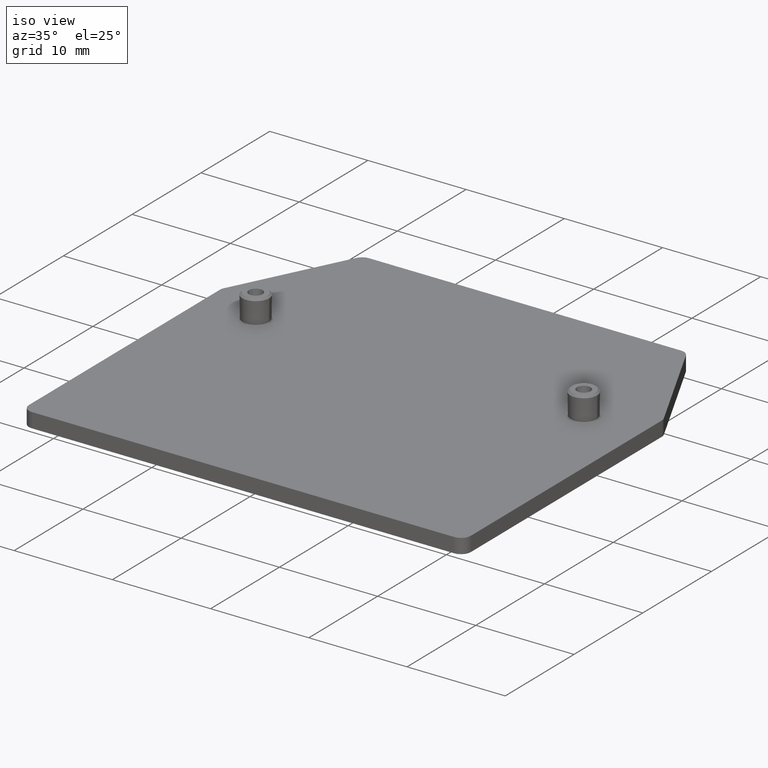
[diagram: clean part render]
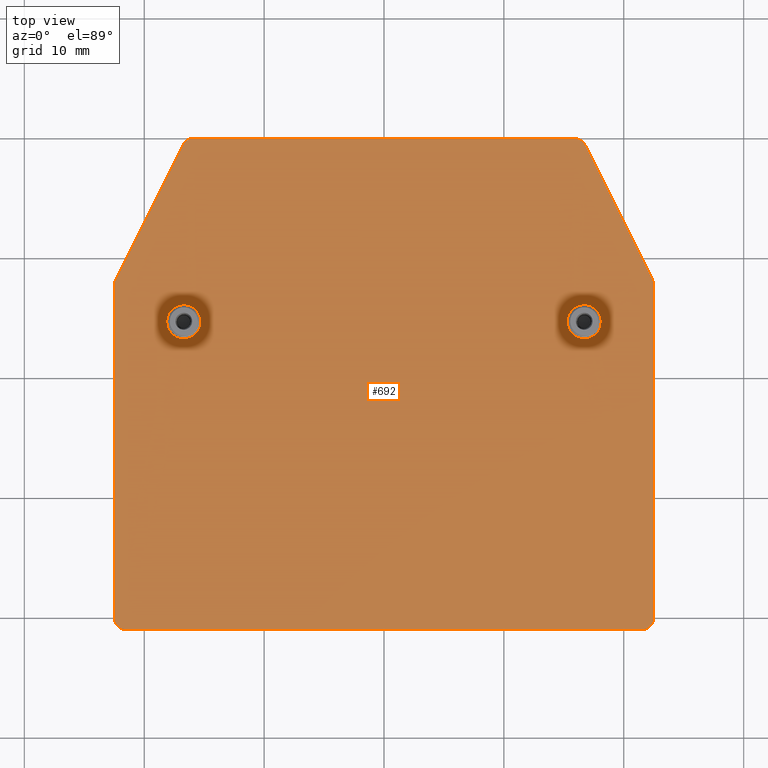
[diagram: tour spotlight — one face highlighted and labeled with its STEP entity id]
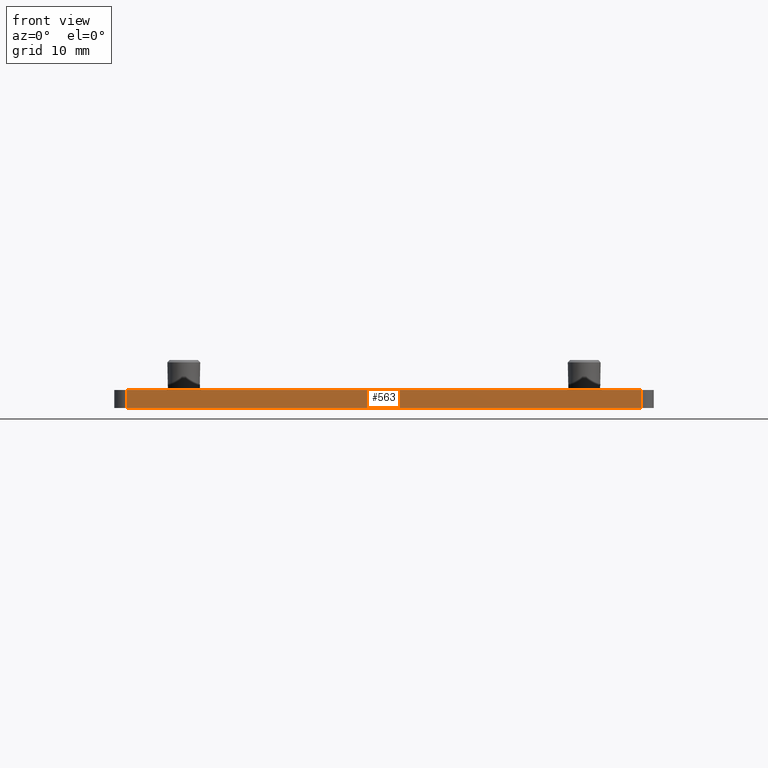
[diagram: tour spotlight — one face highlighted and labeled with its STEP entity id]
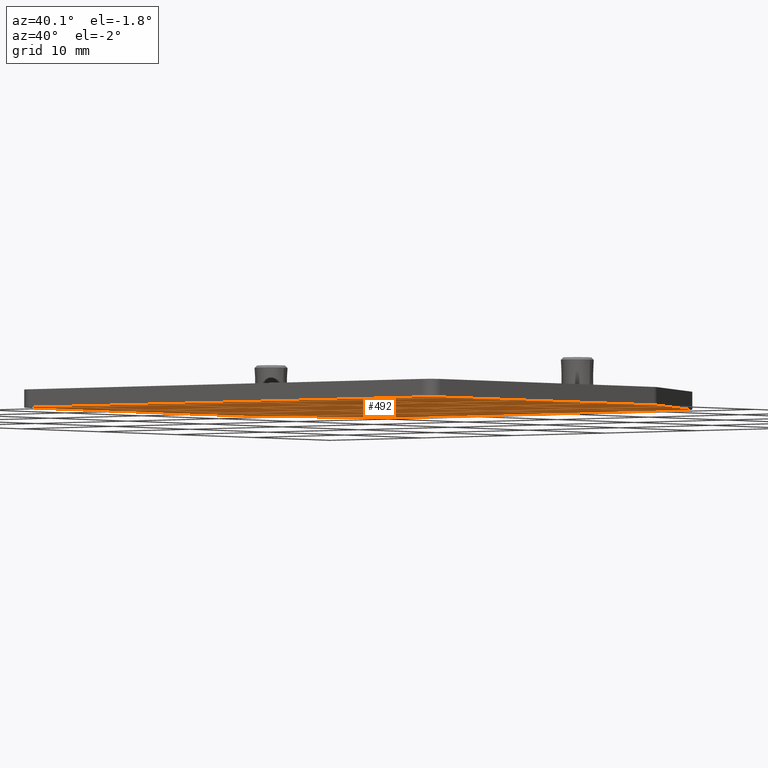
[diagram: tour spotlight — one face highlighted and labeled with its STEP entity id]
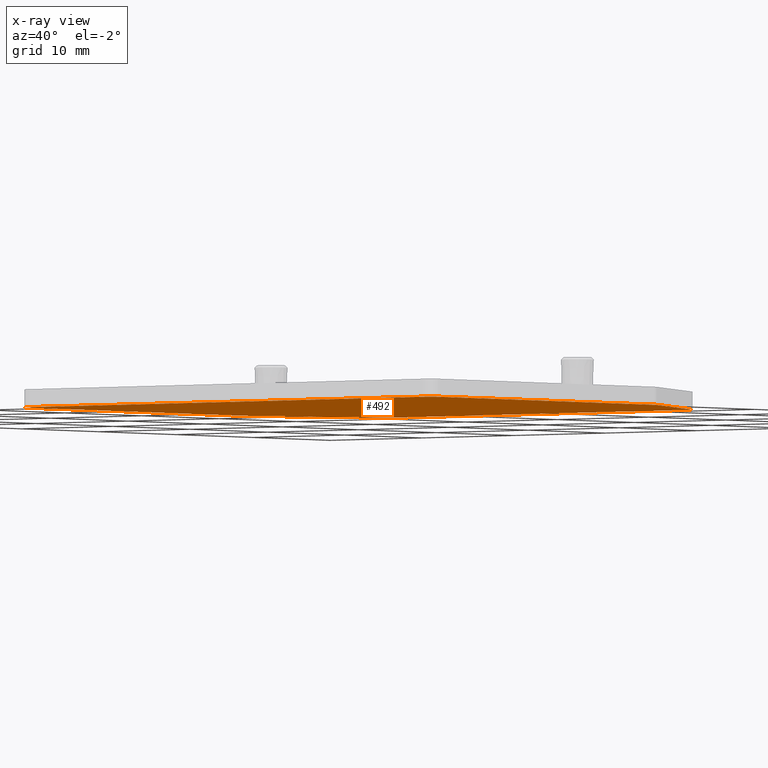
[diagram: x-ray of the same camera — body ghosted, this tour face saturated]
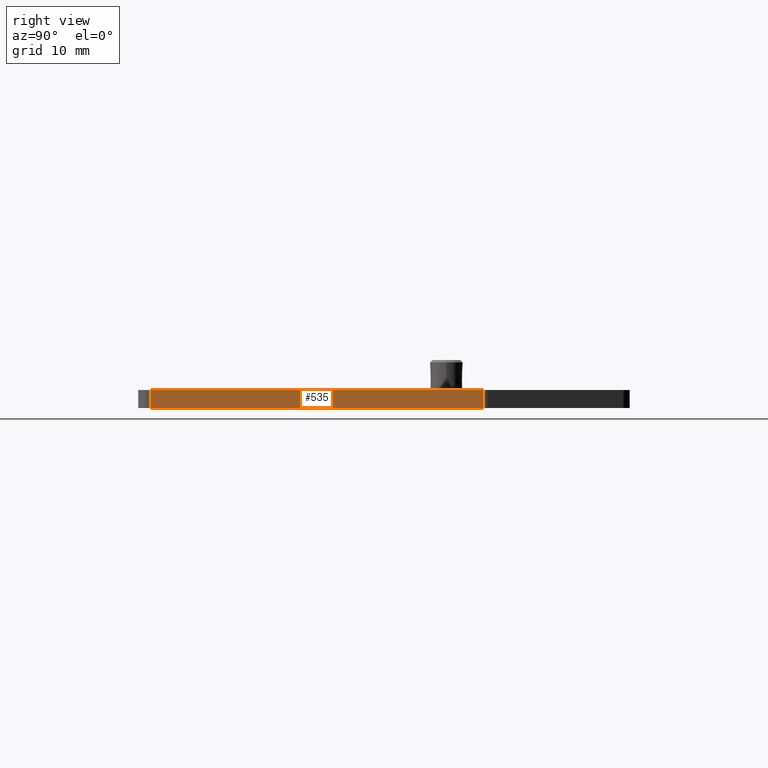
[diagram: tour spotlight — one face highlighted and labeled with its STEP entity id]
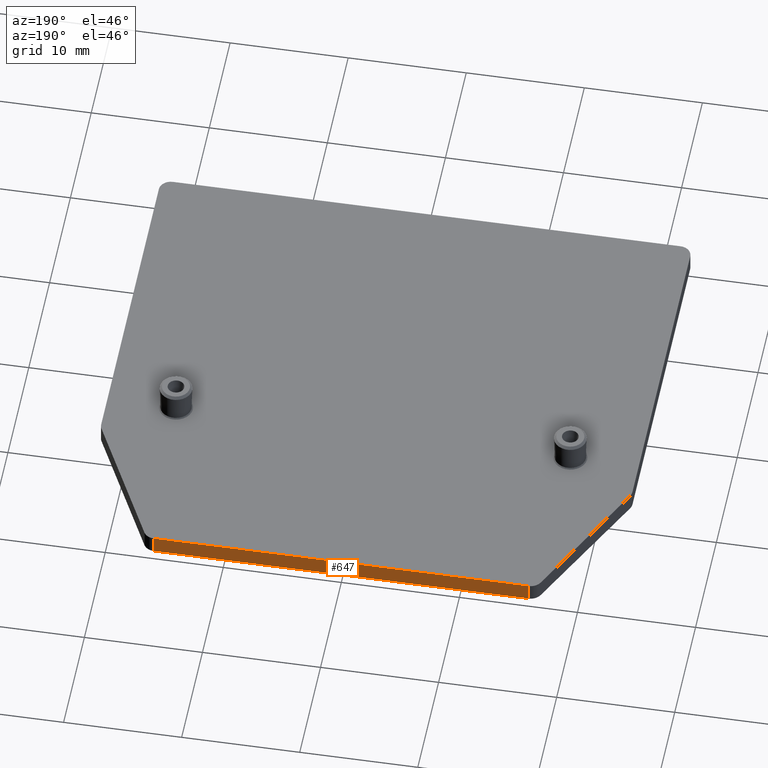
[diagram: tour spotlight — one face highlighted and labeled with its STEP entity id]
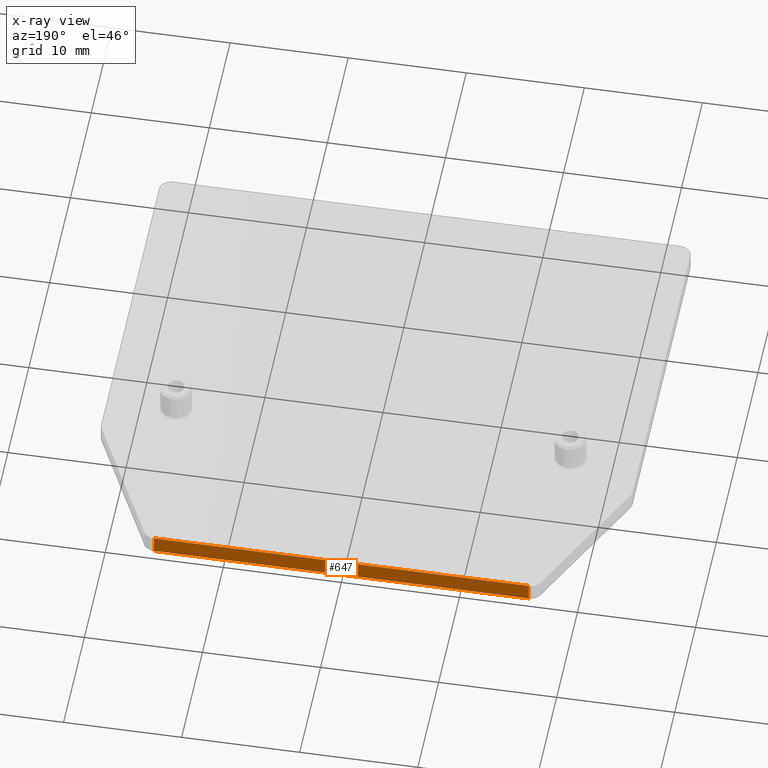
[diagram: x-ray of the same camera — body ghosted, this tour face saturated]
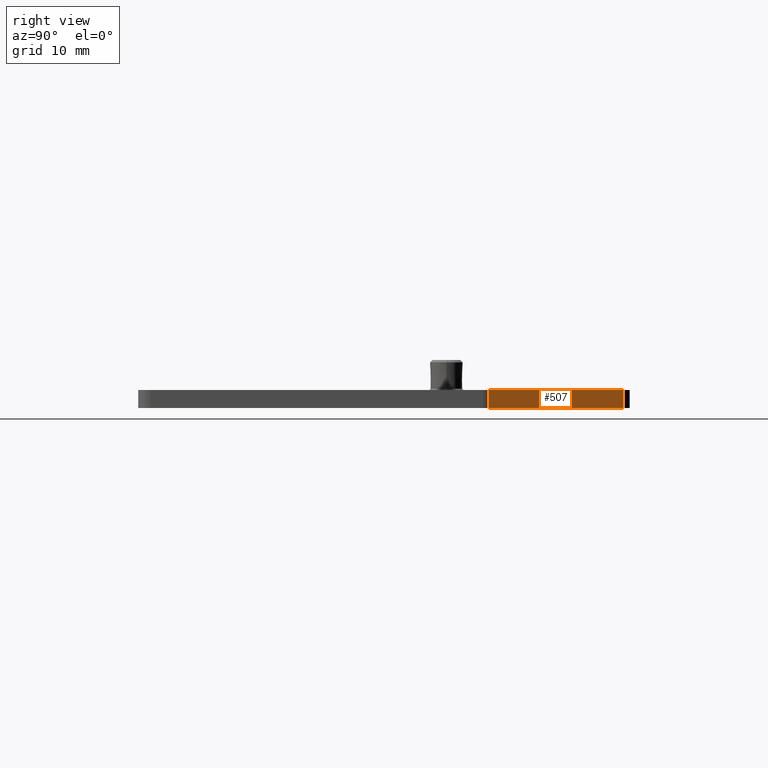
[diagram: tour spotlight — one face highlighted and labeled with its STEP entity id]
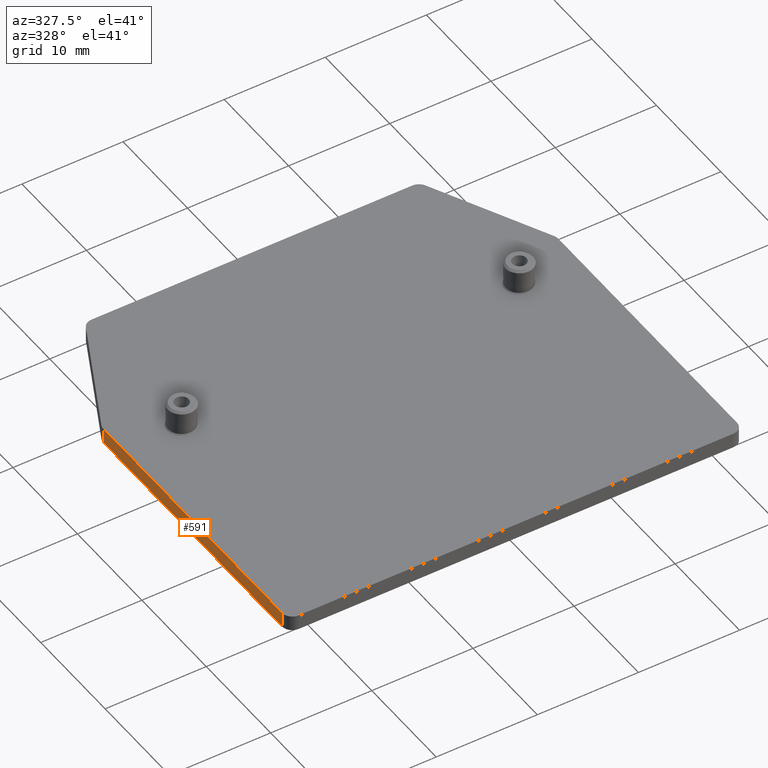
[diagram: tour spotlight — one face highlighted and labeled with its STEP entity id]
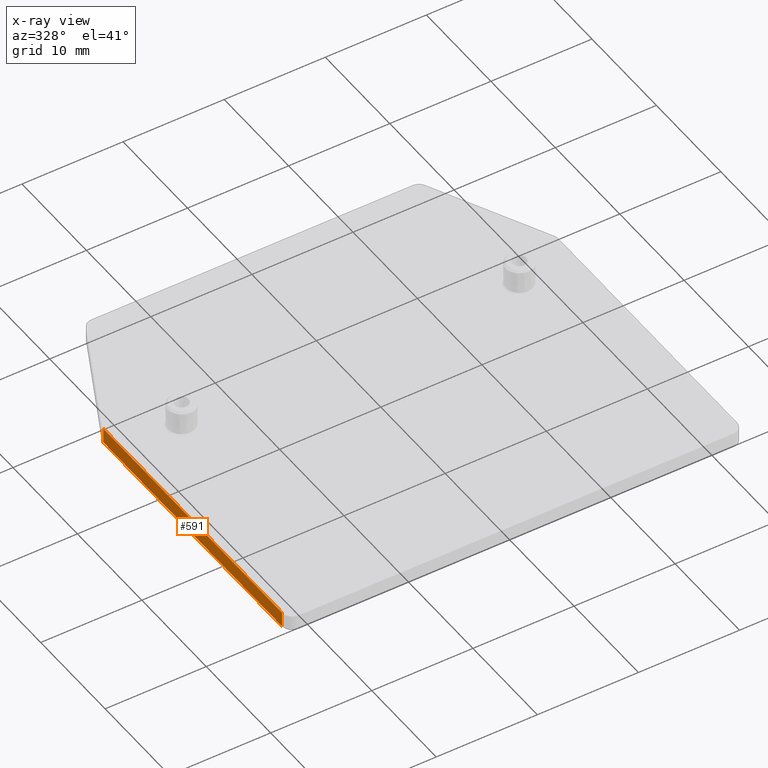
[diagram: x-ray of the same camera — body ghosted, this tour face saturated]
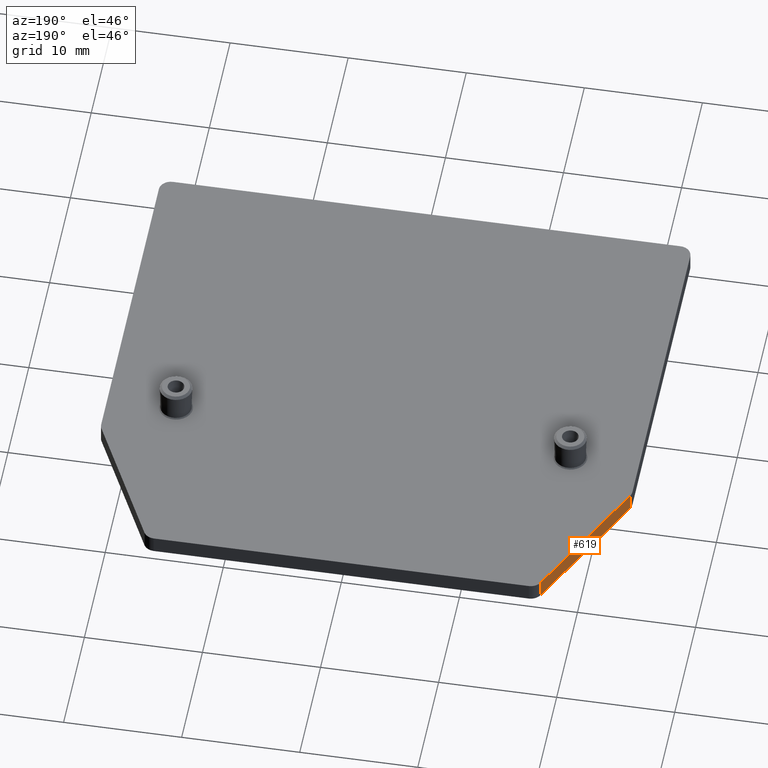
[diagram: tour spotlight — one face highlighted and labeled with its STEP entity id]
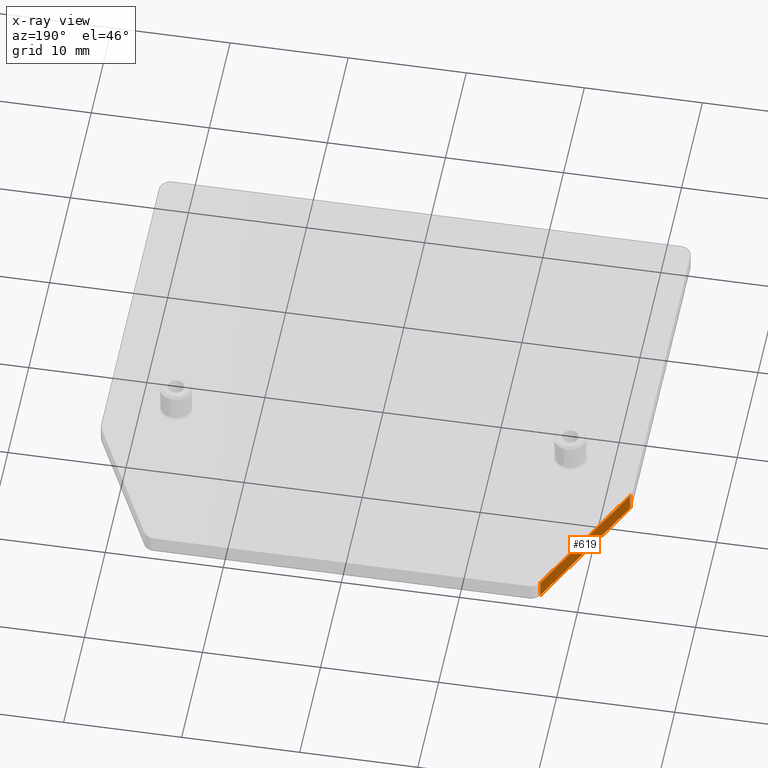
[diagram: x-ray of the same camera — body ghosted, this tour face saturated]
A machine part: a face-by-face anatomy tour. The part has 36 B-rep faces; the first image is the clean iso view, then the 8 largest visible faces are spotlighted one at a time (largest first), each with its STEP entity span.

Face 1 — top view, entity #692. In plain terms, the highlighted planar face has unit normal (0, 0, 1).
Definition (entity closure, byte-faithful):
#29=CARTESIAN_POINT('',(2.15E1,-1.223606797750E1,7.5E-1));
#30=DIRECTION('',(0.E0,0.E0,1.E0));
#31=DIRECTION('',(1.E0,0.E0,0.E0));
#32=AXIS2_PLACEMENT_3D('',#29,#30,#31);
#56=CARTESIAN_POINT('',(2.15E1,-4.E1,7.5E-1));
#57=DIRECTION('',(0.E0,0.E0,-1.E0));
#58=DIRECTION('',(1.E0,0.E0,0.E0));
#59=AXIS2_PLACEMENT_3D('',#56,#57,#58);
#74=CARTESIAN_POINT('',(-2.15E1,-4.E1,7.5E-1));
#75=DIRECTION('',(0.E0,0.E0,-1.E0));
#76=DIRECTION('',(0.E0,-1.E0,0.E0));
#77=AXIS2_PLACEMENT_3D('',#74,#75,#76);
#92=CARTESIAN_POINT('',(-2.15E1,-1.223606797750E1,7.5E-1));
#93=DIRECTION('',(0.E0,0.E0,-1.E0));
#94=DIRECTION('',(-1.E0,0.E0,0.E0));
#95=AXIS2_PLACEMENT_3D('',#92,#93,#94);
#101=CARTESIAN_POINT('',(-1.588196601125E1,-1.E0,7.5E-1));
#102=DIRECTION('',(0.E0,0.E0,1.E0));
#103=DIRECTION('',(0.E0,1.E0,0.E0));
#104=AXIS2_PLACEMENT_3D('',#101,#102,#103);
#128=CARTESIAN_POINT('',(1.588196601125E1,-1.E0,7.5E-1));
#129=DIRECTION('',(0.E0,0.E0,-1.E0));
#130=DIRECTION('',(0.E0,1.E0,0.E0));
#131=AXIS2_PLACEMENT_3D('',#128,#129,#130);
#133=DIRECTION('',(-4.472135955E-1,8.944271909999E-1,0.E0));
#134=VECTOR('',#133,1.256230589875E1);
#135=CARTESIAN_POINT('',(2.239442719100E1,-1.178885438200E1,7.5E-1));
#136=LINE('',#135,#134);
#137=DIRECTION('',(0.E0,1.E0,0.E0));
#138=VECTOR('',#137,2.776393202250E1);
#139=CARTESIAN_POINT('',(2.25E1,-4.E1,7.5E-1));
#140=LINE('',#139,#138);
#141=DIRECTION('',(1.E0,0.E0,0.E0));
#142=VECTOR('',#141,4.3E1);
#143=CARTESIAN_POINT('',(-2.15E1,-4.1E1,7.5E-1));
#144=LINE('',#143,#142);
#145=DIRECTION('',(0.E0,-1.E0,0.E0));
#146=VECTOR('',#145,2.776393202250E1);
#147=CARTESIAN_POINT('',(-2.25E1,-1.223606797750E1,7.5E-1));
#148=LINE('',#147,#146);
#149=DIRECTION('',(-4.472135955E-1,-8.944271909999E-1,0.E0));
#150=VECTOR('',#149,1.256230589875E1);
#151=CARTESIAN_POINT('',(-1.677639320225E1,-5.527864045E-1,7.5E-1));
#152=LINE('',#151,#150);
#153=DIRECTION('',(-1.E0,0.E0,0.E0));
#154=VECTOR('',#153,3.176393202250E1);
#155=CARTESIAN_POINT('',(1.588196601125E1,0.E0,7.5E-1));
#156=LINE('',#155,#154);
#157=CARTESIAN_POINT('',(1.67E1,-1.53E1,7.5E-1));
#158=DIRECTION('',(0.E0,0.E0,-1.E0));
#159=DIRECTION('',(1.E0,3.490385368646E-14,0.E0));
#160=AXIS2_PLACEMENT_3D('',#157,#158,#159);
#175=CARTESIAN_POINT('',(1.67E1,-1.53E1,7.5E-1));
#176=DIRECTION('',(0.E0,0.E0,-1.E0));
#177=DIRECTION('',(-1.E0,3.490385368646E-14,0.E0));
#178=AXIS2_PLACEMENT_3D('',#175,#176,#177);
#259=CARTESIAN_POINT('',(-1.67E1,-1.53E1,7.5E-1));
#260=DIRECTION('',(0.E0,0.E0,1.E0));
#261=DIRECTION('',(-1.E0,3.490385368646E-14,0.E0));
#262=AXIS2_PLACEMENT_3D('',#259,#260,#261);
#277=CARTESIAN_POINT('',(-1.67E1,-1.53E1,7.5E-1));
#278=DIRECTION('',(0.E0,0.E0,1.E0));
#279=DIRECTION('',(1.E0,2.617789026485E-14,0.E0));
#280=AXIS2_PLACEMENT_3D('',#277,#278,#279);
#372=CARTESIAN_POINT('',(2.25E1,-4.E1,7.5E-1));
#374=VERTEX_POINT('',#372);
#376=CARTESIAN_POINT('',(2.15E1,-4.1E1,7.5E-1));
#378=VERTEX_POINT('',#376);
#380=CARTESIAN_POINT('',(-2.15E1,-4.1E1,7.5E-1));
#382=VERTEX_POINT('',#380);
#384=CARTESIAN_POINT('',(-2.25E1,-4.E1,7.5E-1));
#386=VERTEX_POINT('',#384);
#413=CARTESIAN_POINT('',(1.5275E1,-1.53E1,7.5E-1));
#414=CARTESIAN_POINT('',(1.8125E1,-1.53E1,7.5E-1));
#415=VERTEX_POINT('',#413);
#416=VERTEX_POINT('',#414);
#421=CARTESIAN_POINT('',(-1.5275E1,-1.53E1,7.5E-1));
#422=CARTESIAN_POINT('',(-1.8125E1,-1.53E1,7.5E-1));
#423=VERTEX_POINT('',#421);
#424=VERTEX_POINT('',#422);
#430=CARTESIAN_POINT('',(2.25E1,-1.223606797750E1,7.5E-1));
#432=VERTEX_POINT('',#430);
#434=CARTESIAN_POINT('',(2.239442719100E1,-1.178885438200E1,7.5E-1));
#436=VERTEX_POINT('',#434);
#438=CARTESIAN_POINT('',(1.588196601125E1,0.E0,7.5E-1));
#440=VERTEX_POINT('',#438);
#442=CARTESIAN_POINT('',(1.677639320225E1,-5.527864045E-1,7.5E-1));
#444=VERTEX_POINT('',#442);
#446=CARTESIAN_POINT('',(-1.588196601125E1,0.E0,7.5E-1));
#448=VERTEX_POINT('',#446);
#450=CARTESIAN_POINT('',(-1.677639320225E1,-5.527864045E-1,7.5E-1));
#452=VERTEX_POINT('',#450);
#454=CARTESIAN_POINT('',(-2.25E1,-1.223606797750E1,7.5E-1));
#456=VERTEX_POINT('',#454);
#458=CARTESIAN_POINT('',(-2.239442719100E1,-1.178885438200E1,7.5E-1));
#460=VERTEX_POINT('',#458);
#661=CARTESIAN_POINT('',(0.E0,0.E0,7.5E-1));
#662=DIRECTION('',(0.E0,0.E0,1.E0));
#663=DIRECTION('',(1.E0,0.E0,0.E0));
#664=AXIS2_PLACEMENT_3D('',#661,#662,#663);
#665=PLANE('',#664);
#666=ORIENTED_EDGE('',*,*,#501,.F.);
#667=ORIENTED_EDGE('',*,*,#515,.F.);
#668=ORIENTED_EDGE('',*,*,#531,.F.);
#669=ORIENTED_EDGE('',*,*,#545,.T.);
#670=ORIENTED_EDGE('',*,*,#558,.F.);
#671=ORIENTED_EDGE('',*,*,#573,.T.);
#672=ORIENTED_EDGE('',*,*,#585,.F.);
#673=ORIENTED_EDGE('',*,*,#601,.T.);
#674=ORIENTED_EDGE('',*,*,#614,.F.);
#675=ORIENTED_EDGE('',*,*,#627,.F.);
#676=ORIENTED_EDGE('',*,*,#641,.F.);
#677=ORIENTED_EDGE('',*,*,#656,.T.);
#678=EDGE_LOOP('',(#666,#667,#668,#669,#670,#671,#672,#673,#674,#675,#676,
#677));
#679=FACE_OUTER_BOUND('',#678,.F.);
#681=ORIENTED_EDGE('',*,*,#680,.F.);
#683=ORIENTED_EDGE('',*,*,#682,.F.);
#684=EDGE_LOOP('',(#681,#683));
#685=FACE_BOUND('',#684,.F.);
#687=ORIENTED_EDGE('',*,*,#686,.T.);
#689=ORIENTED_EDGE('',*,*,#688,.T.);
#690=EDGE_LOOP('',(#687,#689));
#691=FACE_BOUND('',#690,.F.);
#692=ADVANCED_FACE('',(#679,#685,#691),#665,.T.);
#33=CIRCLE('',#32,1.E0);
#60=CIRCLE('',#59,1.E0);
#78=CIRCLE('',#77,1.E0);
#96=CIRCLE('',#95,1.E0);
#105=CIRCLE('',#104,1.E0);
#132=CIRCLE('',#131,1.E0);
#161=CIRCLE('',#160,1.425E0);
#179=CIRCLE('',#178,1.425E0);
#263=CIRCLE('',#262,1.425E0);
#281=CIRCLE('',#280,1.425E0);
#501=EDGE_CURVE('',#436,#444,#136,.T.);
#515=EDGE_CURVE('',#432,#436,#33,.T.);
#531=EDGE_CURVE('',#374,#432,#140,.T.);
#545=EDGE_CURVE('',#374,#378,#60,.T.);
#558=EDGE_CURVE('',#382,#378,#144,.T.);
#573=EDGE_CURVE('',#382,#386,#78,.T.);
#585=EDGE_CURVE('',#456,#386,#148,.T.);
#601=EDGE_CURVE('',#456,#460,#96,.T.);
#614=EDGE_CURVE('',#452,#460,#152,.T.);
#627=EDGE_CURVE('',#448,#452,#105,.T.);
#641=EDGE_CURVE('',#440,#448,#156,.T.);
#656=EDGE_CURVE('',#440,#444,#132,.T.);
#680=EDGE_CURVE('',#416,#415,#161,.T.);
#682=EDGE_CURVE('',#415,#416,#179,.T.);
#686=EDGE_CURVE('',#424,#423,#263,.T.);
#688=EDGE_CURVE('',#423,#424,#281,.T.);

Face 2 — front view, entity #563. In plain terms, the highlighted planar face has unit normal (0, -1, 0).
Definition (entity closure, byte-faithful):
#17=DIRECTION('',(1.E0,0.E0,0.E0));
#18=VECTOR('',#17,4.3E1);
#19=CARTESIAN_POINT('',(-2.15E1,-4.1E1,-7.5E-1));
#20=LINE('',#19,#18);
#52=DIRECTION('',(0.E0,0.E0,1.E0));
#53=VECTOR('',#52,1.5E0);
#54=CARTESIAN_POINT('',(2.15E1,-4.1E1,-7.5E-1));
#55=LINE('',#54,#53);
#61=DIRECTION('',(0.E0,0.E0,1.E0));
#62=VECTOR('',#61,1.5E0);
#63=CARTESIAN_POINT('',(-2.15E1,-4.1E1,-7.5E-1));
#64=LINE('',#63,#62);
#141=DIRECTION('',(1.E0,0.E0,0.E0));
#142=VECTOR('',#141,4.3E1);
#143=CARTESIAN_POINT('',(-2.15E1,-4.1E1,7.5E-1));
#144=LINE('',#143,#142);
#375=CARTESIAN_POINT('',(2.15E1,-4.1E1,-7.5E-1));
#376=CARTESIAN_POINT('',(2.15E1,-4.1E1,7.5E-1));
#377=VERTEX_POINT('',#375);
#378=VERTEX_POINT('',#376);
#379=CARTESIAN_POINT('',(-2.15E1,-4.1E1,-7.5E-1));
#380=CARTESIAN_POINT('',(-2.15E1,-4.1E1,7.5E-1));
#381=VERTEX_POINT('',#379);
#382=VERTEX_POINT('',#380);
#550=CARTESIAN_POINT('',(-2.25E1,-4.1E1,-7.5E-1));
#551=DIRECTION('',(0.E0,-1.E0,0.E0));
#552=DIRECTION('',(1.E0,0.E0,0.E0));
#553=AXIS2_PLACEMENT_3D('',#550,#551,#552);
#554=PLANE('',#553);
#555=ORIENTED_EDGE('',*,*,#482,.F.);
#557=ORIENTED_EDGE('',*,*,#556,.T.);
#559=ORIENTED_EDGE('',*,*,#558,.T.);
#560=ORIENTED_EDGE('',*,*,#543,.F.);
#561=EDGE_LOOP('',(#555,#557,#559,#560));
#562=FACE_OUTER_BOUND('',#561,.F.);
#563=ADVANCED_FACE('',(#562),#554,.T.);
#482=EDGE_CURVE('',#381,#377,#20,.T.);
#543=EDGE_CURVE('',#377,#378,#55,.T.);
#556=EDGE_CURVE('',#381,#382,#64,.T.);
#558=EDGE_CURVE('',#382,#378,#144,.T.);

Face 3 — auxiliary view, entity #492. An x-ray twin of the same camera follows (body ghosted, this face saturated) — the face is partly hidden behind the body. In plain terms, the highlighted planar face has unit normal (0, 0, 1).
Definition (entity closure, byte-faithful):
#1=DIRECTION('',(-4.472135955E-1,8.944271909999E-1,0.E0));
#2=VECTOR('',#1,1.256230589875E1);
#3=CARTESIAN_POINT('',(2.239442719100E1,-1.178885438200E1,-7.5E-1));
#4=LINE('',#3,#2);
#5=DIRECTION('',(-1.E0,0.E0,0.E0));
#6=VECTOR('',#5,3.176393202250E1);
#7=CARTESIAN_POINT('',(1.588196601125E1,0.E0,-7.5E-1));
#8=LINE('',#7,#6);
#9=DIRECTION('',(-4.472135955E-1,-8.944271909999E-1,0.E0));
#10=VECTOR('',#9,1.256230589875E1);
#11=CARTESIAN_POINT('',(-1.677639320225E1,-5.527864045E-1,-7.5E-1));
#12=LINE('',#11,#10);
#13=DIRECTION('',(0.E0,-1.E0,0.E0));
#14=VECTOR('',#13,2.776393202250E1);
#15=CARTESIAN_POINT('',(-2.25E1,-1.223606797750E1,-7.5E-1));
#16=LINE('',#15,#14);
#17=DIRECTION('',(1.E0,0.E0,0.E0));
#18=VECTOR('',#17,4.3E1);
#19=CARTESIAN_POINT('',(-2.15E1,-4.1E1,-7.5E-1));
#20=LINE('',#19,#18);
#21=DIRECTION('',(0.E0,1.E0,0.E0));
#22=VECTOR('',#21,2.776393202250E1);
#23=CARTESIAN_POINT('',(2.25E1,-4.E1,-7.5E-1));
#24=LINE('',#23,#22);
#38=CARTESIAN_POINT('',(2.15E1,-1.223606797750E1,-7.5E-1));
#39=DIRECTION('',(0.E0,0.E0,1.E0));
#40=DIRECTION('',(1.E0,0.E0,0.E0));
#41=AXIS2_PLACEMENT_3D('',#38,#39,#40);
#47=CARTESIAN_POINT('',(2.15E1,-4.E1,-7.5E-1));
#48=DIRECTION('',(0.E0,0.E0,-1.E0));
#49=DIRECTION('',(1.E0,0.E0,0.E0));
#50=AXIS2_PLACEMENT_3D('',#47,#48,#49);
#65=CARTESIAN_POINT('',(-2.15E1,-4.E1,-7.5E-1));
#66=DIRECTION('',(0.E0,0.E0,-1.E0));
#67=DIRECTION('',(0.E0,-1.E0,0.E0));
#68=AXIS2_PLACEMENT_3D('',#65,#66,#67);
#83=CARTESIAN_POINT('',(-2.15E1,-1.223606797750E1,-7.5E-1));
#84=DIRECTION('',(0.E0,0.E0,-1.E0));
#85=DIRECTION('',(-1.E0,0.E0,0.E0));
#86=AXIS2_PLACEMENT_3D('',#83,#84,#85);
#110=CARTESIAN_POINT('',(-1.588196601125E1,-1.E0,-7.5E-1));
#111=DIRECTION('',(0.E0,0.E0,1.E0));
#112=DIRECTION('',(0.E0,1.E0,0.E0));
#113=AXIS2_PLACEMENT_3D('',#110,#111,#112);
#119=CARTESIAN_POINT('',(1.588196601125E1,-1.E0,-7.5E-1));
#120=DIRECTION('',(0.E0,0.E0,-1.E0));
#121=DIRECTION('',(0.E0,1.E0,0.E0));
#122=AXIS2_PLACEMENT_3D('',#119,#120,#121);
#371=CARTESIAN_POINT('',(2.25E1,-4.E1,-7.5E-1));
#373=VERTEX_POINT('',#371);
#375=CARTESIAN_POINT('',(2.15E1,-4.1E1,-7.5E-1));
#377=VERTEX_POINT('',#375);
#379=CARTESIAN_POINT('',(-2.15E1,-4.1E1,-7.5E-1));
#381=VERTEX_POINT('',#379);
#383=CARTESIAN_POINT('',(-2.25E1,-4.E1,-7.5E-1));
#385=VERTEX_POINT('',#383);
#429=CARTESIAN_POINT('',(2.25E1,-1.223606797750E1,-7.5E-1));
#431=VERTEX_POINT('',#429);
#433=CARTESIAN_POINT('',(2.239442719100E1,-1.178885438200E1,-7.5E-1));
#435=VERTEX_POINT('',#433);
#437=CARTESIAN_POINT('',(1.588196601125E1,0.E0,-7.5E-1));
#439=VERTEX_POINT('',#437);
#441=CARTESIAN_POINT('',(1.677639320225E1,-5.527864045E-1,-7.5E-1));
#443=VERTEX_POINT('',#441);
#445=CARTESIAN_POINT('',(-1.588196601125E1,0.E0,-7.5E-1));
#447=VERTEX_POINT('',#445);
#449=CARTESIAN_POINT('',(-1.677639320225E1,-5.527864045E-1,-7.5E-1));
#451=VERTEX_POINT('',#449);
#453=CARTESIAN_POINT('',(-2.25E1,-1.223606797750E1,-7.5E-1));
#455=VERTEX_POINT('',#453);
#457=CARTESIAN_POINT('',(-2.239442719100E1,-1.178885438200E1,-7.5E-1));
#459=VERTEX_POINT('',#457);
#461=CARTESIAN_POINT('',(0.E0,0.E0,-7.5E-1));
#462=DIRECTION('',(0.E0,0.E0,1.E0));
#463=DIRECTION('',(1.E0,0.E0,0.E0));
#464=AXIS2_PLACEMENT_3D('',#461,#462,#463);
#465=PLANE('',#464);
#467=ORIENTED_EDGE('',*,*,#466,.T.);
#469=ORIENTED_EDGE('',*,*,#468,.F.);
#471=ORIENTED_EDGE('',*,*,#470,.T.);
#473=ORIENTED_EDGE('',*,*,#472,.T.);
#475=ORIENTED_EDGE('',*,*,#474,.T.);
#477=ORIENTED_EDGE('',*,*,#476,.F.);
#479=ORIENTED_EDGE('',*,*,#478,.T.);
#481=ORIENTED_EDGE('',*,*,#480,.F.);
#483=ORIENTED_EDGE('',*,*,#482,.T.);
#485=ORIENTED_EDGE('',*,*,#484,.F.);
#487=ORIENTED_EDGE('',*,*,#486,.T.);
#489=ORIENTED_EDGE('',*,*,#488,.T.);
#490=EDGE_LOOP('',(#467,#469,#471,#473,#475,#477,#479,#481,#483,#485,#487,
#489));
#491=FACE_OUTER_BOUND('',#490,.F.);
#492=ADVANCED_FACE('',(#491),#465,.F.);
#42=CIRCLE('',#41,1.E0);
#51=CIRCLE('',#50,1.E0);
#69=CIRCLE('',#68,1.E0);
#87=CIRCLE('',#86,1.E0);
#114=CIRCLE('',#113,1.E0);
#123=CIRCLE('',#122,1.E0);
#466=EDGE_CURVE('',#435,#443,#4,.T.);
#468=EDGE_CURVE('',#439,#443,#123,.T.);
#470=EDGE_CURVE('',#439,#447,#8,.T.);
#472=EDGE_CURVE('',#447,#451,#114,.T.);
#474=EDGE_CURVE('',#451,#459,#12,.T.);
#476=EDGE_CURVE('',#455,#459,#87,.T.);
#478=EDGE_CURVE('',#455,#385,#16,.T.);
#480=EDGE_CURVE('',#381,#385,#69,.T.);
#482=EDGE_CURVE('',#381,#377,#20,.T.);
#484=EDGE_CURVE('',#373,#377,#51,.T.);
#486=EDGE_CURVE('',#373,#431,#24,.T.);
#488=EDGE_CURVE('',#431,#435,#42,.T.);

Face 4 — right view, entity #535. In plain terms, the highlighted planar face has unit normal (1, 0, 0).
Definition (entity closure, byte-faithful):
#21=DIRECTION('',(0.E0,1.E0,0.E0));
#22=VECTOR('',#21,2.776393202250E1);
#23=CARTESIAN_POINT('',(2.25E1,-4.E1,-7.5E-1));
#24=LINE('',#23,#22);
#25=DIRECTION('',(0.E0,0.E0,1.E0));
#26=VECTOR('',#25,1.5E0);
#27=CARTESIAN_POINT('',(2.25E1,-1.223606797750E1,-7.5E-1));
#28=LINE('',#27,#26);
#43=DIRECTION('',(0.E0,0.E0,1.E0));
#44=VECTOR('',#43,1.5E0);
#45=CARTESIAN_POINT('',(2.25E1,-4.E1,-7.5E-1));
#46=LINE('',#45,#44);
#137=DIRECTION('',(0.E0,1.E0,0.E0));
#138=VECTOR('',#137,2.776393202250E1);
#139=CARTESIAN_POINT('',(2.25E1,-4.E1,7.5E-1));
#140=LINE('',#139,#138);
#371=CARTESIAN_POINT('',(2.25E1,-4.E1,-7.5E-1));
#372=CARTESIAN_POINT('',(2.25E1,-4.E1,7.5E-1));
#373=VERTEX_POINT('',#371);
#374=VERTEX_POINT('',#372);
#429=CARTESIAN_POINT('',(2.25E1,-1.223606797750E1,-7.5E-1));
#430=CARTESIAN_POINT('',(2.25E1,-1.223606797750E1,7.5E-1));
#431=VERTEX_POINT('',#429);
#432=VERTEX_POINT('',#430);
#522=CARTESIAN_POINT('',(2.25E1,-4.1E1,-7.5E-1));
#523=DIRECTION('',(1.E0,0.E0,0.E0));
#524=DIRECTION('',(0.E0,1.E0,0.E0));
#525=AXIS2_PLACEMENT_3D('',#522,#523,#524);
#526=PLANE('',#525);
#527=ORIENTED_EDGE('',*,*,#513,.F.);
#528=ORIENTED_EDGE('',*,*,#486,.F.);
#530=ORIENTED_EDGE('',*,*,#529,.T.);
#532=ORIENTED_EDGE('',*,*,#531,.T.);
#533=EDGE_LOOP('',(#527,#528,#530,#532));
#534=FACE_OUTER_BOUND('',#533,.F.);
#535=ADVANCED_FACE('',(#534),#526,.T.);
#486=EDGE_CURVE('',#373,#431,#24,.T.);
#513=EDGE_CURVE('',#431,#432,#28,.T.);
#529=EDGE_CURVE('',#373,#374,#46,.T.);
#531=EDGE_CURVE('',#374,#432,#140,.T.);

Face 5 — auxiliary view, entity #647. An x-ray twin of the same camera follows (body ghosted, this face saturated) — the face is partly hidden behind the body. In plain terms, the highlighted planar face has unit normal (0, 1, 0).
Definition (entity closure, byte-faithful):
#5=DIRECTION('',(-1.E0,0.E0,0.E0));
#6=VECTOR('',#5,3.176393202250E1);
#7=CARTESIAN_POINT('',(1.588196601125E1,0.E0,-7.5E-1));
#8=LINE('',#7,#6);
#97=DIRECTION('',(0.E0,0.E0,1.E0));
#98=VECTOR('',#97,1.5E0);
#99=CARTESIAN_POINT('',(-1.588196601125E1,0.E0,-7.5E-1));
#100=LINE('',#99,#98);
#115=DIRECTION('',(0.E0,0.E0,1.E0));
#116=VECTOR('',#115,1.5E0);
#117=CARTESIAN_POINT('',(1.588196601125E1,0.E0,-7.5E-1));
#118=LINE('',#117,#116);
#153=DIRECTION('',(-1.E0,0.E0,0.E0));
#154=VECTOR('',#153,3.176393202250E1);
#155=CARTESIAN_POINT('',(1.588196601125E1,0.E0,7.5E-1));
#156=LINE('',#155,#154);
#437=CARTESIAN_POINT('',(1.588196601125E1,0.E0,-7.5E-1));
#438=CARTESIAN_POINT('',(1.588196601125E1,0.E0,7.5E-1));
#439=VERTEX_POINT('',#437);
#440=VERTEX_POINT('',#438);
#445=CARTESIAN_POINT('',(-1.588196601125E1,0.E0,-7.5E-1));
#446=CARTESIAN_POINT('',(-1.588196601125E1,0.E0,7.5E-1));
#447=VERTEX_POINT('',#445);
#448=VERTEX_POINT('',#446);
#634=CARTESIAN_POINT('',(2.25E1,0.E0,-7.5E-1));
#635=DIRECTION('',(0.E0,1.E0,0.E0));
#636=DIRECTION('',(-1.E0,0.E0,0.E0));
#637=AXIS2_PLACEMENT_3D('',#634,#635,#636);
#638=PLANE('',#637);
#640=ORIENTED_EDGE('',*,*,#639,.T.);
#642=ORIENTED_EDGE('',*,*,#641,.T.);
#643=ORIENTED_EDGE('',*,*,#625,.F.);
#644=ORIENTED_EDGE('',*,*,#470,.F.);
#645=EDGE_LOOP('',(#640,#642,#643,#644));
#646=FACE_OUTER_BOUND('',#645,.F.);
#647=ADVANCED_FACE('',(#646),#638,.T.);
#470=EDGE_CURVE('',#439,#447,#8,.T.);
#625=EDGE_CURVE('',#447,#448,#100,.T.);
#639=EDGE_CURVE('',#439,#440,#118,.T.);
#641=EDGE_CURVE('',#440,#448,#156,.T.);

Face 6 — right view, entity #507. In plain terms, the highlighted planar face has unit normal (-0.8944, -0.4472, 0).
Definition (entity closure, byte-faithful):
#1=DIRECTION('',(-4.472135955E-1,8.944271909999E-1,0.E0));
#2=VECTOR('',#1,1.256230589875E1);
#3=CARTESIAN_POINT('',(2.239442719100E1,-1.178885438200E1,-7.5E-1));
#4=LINE('',#3,#2);
#34=DIRECTION('',(0.E0,0.E0,1.E0));
#35=VECTOR('',#34,1.5E0);
#36=CARTESIAN_POINT('',(2.239442719100E1,-1.178885438200E1,-7.5E-1));
#37=LINE('',#36,#35);
#124=DIRECTION('',(0.E0,0.E0,1.E0));
#125=VECTOR('',#124,1.5E0);
#126=CARTESIAN_POINT('',(1.677639320225E1,-5.527864045E-1,-7.5E-1));
#127=LINE('',#126,#125);
#133=DIRECTION('',(-4.472135955E-1,8.944271909999E-1,0.E0));
#134=VECTOR('',#133,1.256230589875E1);
#135=CARTESIAN_POINT('',(2.239442719100E1,-1.178885438200E1,7.5E-1));
#136=LINE('',#135,#134);
#433=CARTESIAN_POINT('',(2.239442719100E1,-1.178885438200E1,-7.5E-1));
#434=CARTESIAN_POINT('',(2.239442719100E1,-1.178885438200E1,7.5E-1));
#435=VERTEX_POINT('',#433);
#436=VERTEX_POINT('',#434);
#441=CARTESIAN_POINT('',(1.677639320225E1,-5.527864045E-1,-7.5E-1));
#442=CARTESIAN_POINT('',(1.677639320225E1,-5.527864045E-1,7.5E-1));
#443=VERTEX_POINT('',#441);
#444=VERTEX_POINT('',#442);
#493=CARTESIAN_POINT('',(2.25E1,-1.2E1,-7.5E-1));
#494=DIRECTION('',(-8.944271909999E-1,-4.472135955E-1,0.E0));
#495=DIRECTION('',(-4.472135955E-1,8.944271909999E-1,0.E0));
#496=AXIS2_PLACEMENT_3D('',#493,#494,#495);
#497=PLANE('',#496);
#498=ORIENTED_EDGE('',*,*,#466,.F.);
#500=ORIENTED_EDGE('',*,*,#499,.T.);
#502=ORIENTED_EDGE('',*,*,#501,.T.);
#504=ORIENTED_EDGE('',*,*,#503,.F.);
#505=EDGE_LOOP('',(#498,#500,#502,#504));
#506=FACE_OUTER_BOUND('',#505,.F.);
#507=ADVANCED_FACE('',(#506),#497,.F.);
#466=EDGE_CURVE('',#435,#443,#4,.T.);
#499=EDGE_CURVE('',#435,#436,#37,.T.);
#501=EDGE_CURVE('',#436,#444,#136,.T.);
#503=EDGE_CURVE('',#443,#444,#127,.T.);

Face 7 — auxiliary view, entity #591. An x-ray twin of the same camera follows (body ghosted, this face saturated) — the face is partly hidden behind the body. In plain terms, the highlighted planar face has unit normal (-1, 0, 0).
Definition (entity closure, byte-faithful):
#13=DIRECTION('',(0.E0,-1.E0,0.E0));
#14=VECTOR('',#13,2.776393202250E1);
#15=CARTESIAN_POINT('',(-2.25E1,-1.223606797750E1,-7.5E-1));
#16=LINE('',#15,#14);
#70=DIRECTION('',(0.E0,0.E0,1.E0));
#71=VECTOR('',#70,1.5E0);
#72=CARTESIAN_POINT('',(-2.25E1,-4.E1,-7.5E-1));
#73=LINE('',#72,#71);
#79=DIRECTION('',(0.E0,0.E0,1.E0));
#80=VECTOR('',#79,1.5E0);
#81=CARTESIAN_POINT('',(-2.25E1,-1.223606797750E1,-7.5E-1));
#82=LINE('',#81,#80);
#145=DIRECTION('',(0.E0,-1.E0,0.E0));
#146=VECTOR('',#145,2.776393202250E1);
#147=CARTESIAN_POINT('',(-2.25E1,-1.223606797750E1,7.5E-1));
#148=LINE('',#147,#146);
#383=CARTESIAN_POINT('',(-2.25E1,-4.E1,-7.5E-1));
#384=CARTESIAN_POINT('',(-2.25E1,-4.E1,7.5E-1));
#385=VERTEX_POINT('',#383);
#386=VERTEX_POINT('',#384);
#453=CARTESIAN_POINT('',(-2.25E1,-1.223606797750E1,-7.5E-1));
#454=CARTESIAN_POINT('',(-2.25E1,-1.223606797750E1,7.5E-1));
#455=VERTEX_POINT('',#453);
#456=VERTEX_POINT('',#454);
#578=CARTESIAN_POINT('',(-2.25E1,0.E0,-7.5E-1));
#579=DIRECTION('',(-1.E0,0.E0,0.E0));
#580=DIRECTION('',(0.E0,-1.E0,0.E0));
#581=AXIS2_PLACEMENT_3D('',#578,#579,#580);
#582=PLANE('',#581);
#584=ORIENTED_EDGE('',*,*,#583,.T.);
#586=ORIENTED_EDGE('',*,*,#585,.T.);
#587=ORIENTED_EDGE('',*,*,#571,.F.);
#588=ORIENTED_EDGE('',*,*,#478,.F.);
#589=EDGE_LOOP('',(#584,#586,#587,#588));
#590=FACE_OUTER_BOUND('',#589,.F.);
#591=ADVANCED_FACE('',(#590),#582,.T.);
#478=EDGE_CURVE('',#455,#385,#16,.T.);
#571=EDGE_CURVE('',#385,#386,#73,.T.);
#583=EDGE_CURVE('',#455,#456,#82,.T.);
#585=EDGE_CURVE('',#456,#386,#148,.T.);

Face 8 — auxiliary view, entity #619. An x-ray twin of the same camera follows (body ghosted, this face saturated) — the face is partly hidden behind the body. In plain terms, the highlighted planar face has unit normal (0.8944, -0.4472, 0).
Definition (entity closure, byte-faithful):
#9=DIRECTION('',(-4.472135955E-1,-8.944271909999E-1,0.E0));
#10=VECTOR('',#9,1.256230589875E1);
#11=CARTESIAN_POINT('',(-1.677639320225E1,-5.527864045E-1,-7.5E-1));
#12=LINE('',#11,#10);
#88=DIRECTION('',(0.E0,0.E0,1.E0));
#89=VECTOR('',#88,1.5E0);
#90=CARTESIAN_POINT('',(-2.239442719100E1,-1.178885438200E1,-7.5E-1));
#91=LINE('',#90,#89);
#106=DIRECTION('',(0.E0,0.E0,1.E0));
#107=VECTOR('',#106,1.5E0);
#108=CARTESIAN_POINT('',(-1.677639320225E1,-5.527864045E-1,-7.5E-1));
#109=LINE('',#108,#107);
#149=DIRECTION('',(-4.472135955E-1,-8.944271909999E-1,0.E0));
#150=VECTOR('',#149,1.256230589875E1);
#151=CARTESIAN_POINT('',(-1.677639320225E1,-5.527864045E-1,7.5E-1));
#152=LINE('',#151,#150);
#449=CARTESIAN_POINT('',(-1.677639320225E1,-5.527864045E-1,-7.5E-1));
#450=CARTESIAN_POINT('',(-1.677639320225E1,-5.527864045E-1,7.5E-1));
#451=VERTEX_POINT('',#449);
#452=VERTEX_POINT('',#450);
#457=CARTESIAN_POINT('',(-2.239442719100E1,-1.178885438200E1,-7.5E-1));
#458=CARTESIAN_POINT('',(-2.239442719100E1,-1.178885438200E1,7.5E-1));
#459=VERTEX_POINT('',#457);
#460=VERTEX_POINT('',#458);
#606=CARTESIAN_POINT('',(-1.65E1,0.E0,-7.5E-1));
#607=DIRECTION('',(8.944271909999E-1,-4.472135955E-1,0.E0));
#608=DIRECTION('',(-4.472135955E-1,-8.944271909999E-1,0.E0));
#609=AXIS2_PLACEMENT_3D('',#606,#607,#608);
#610=PLANE('',#609);
#611=ORIENTED_EDGE('',*,*,#474,.F.);
#613=ORIENTED_EDGE('',*,*,#612,.T.);
#615=ORIENTED_EDGE('',*,*,#614,.T.);
#616=ORIENTED_EDGE('',*,*,#599,.F.);
#617=EDGE_LOOP('',(#611,#613,#615,#616));
#618=FACE_OUTER_BOUND('',#617,.F.);
#619=ADVANCED_FACE('',(#618),#610,.F.);
#474=EDGE_CURVE('',#451,#459,#12,.T.);
#599=EDGE_CURVE('',#459,#460,#91,.T.);
#612=EDGE_CURVE('',#451,#452,#109,.T.);
#614=EDGE_CURVE('',#452,#460,#152,.T.);